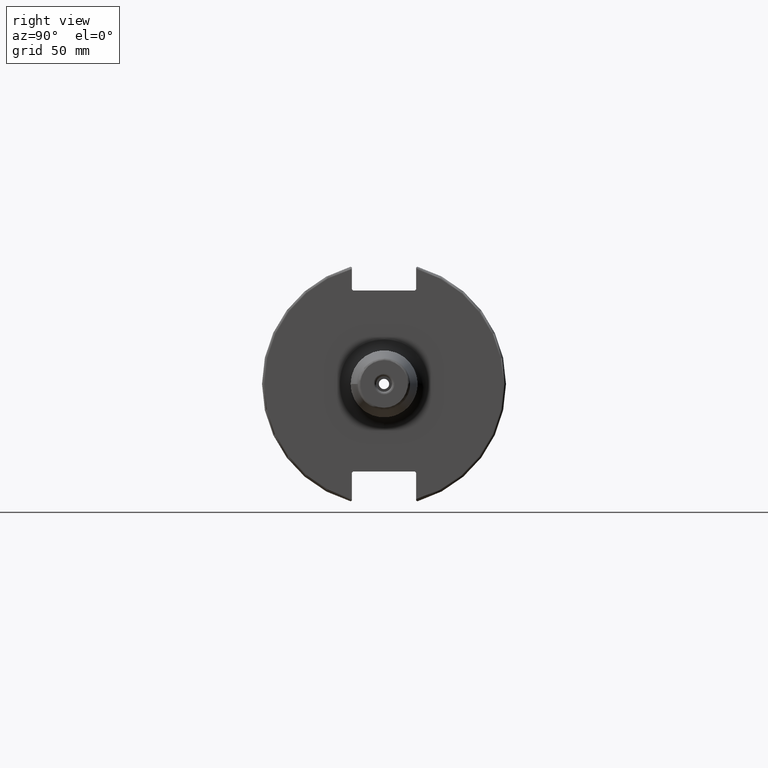
[diagram: clean part render]
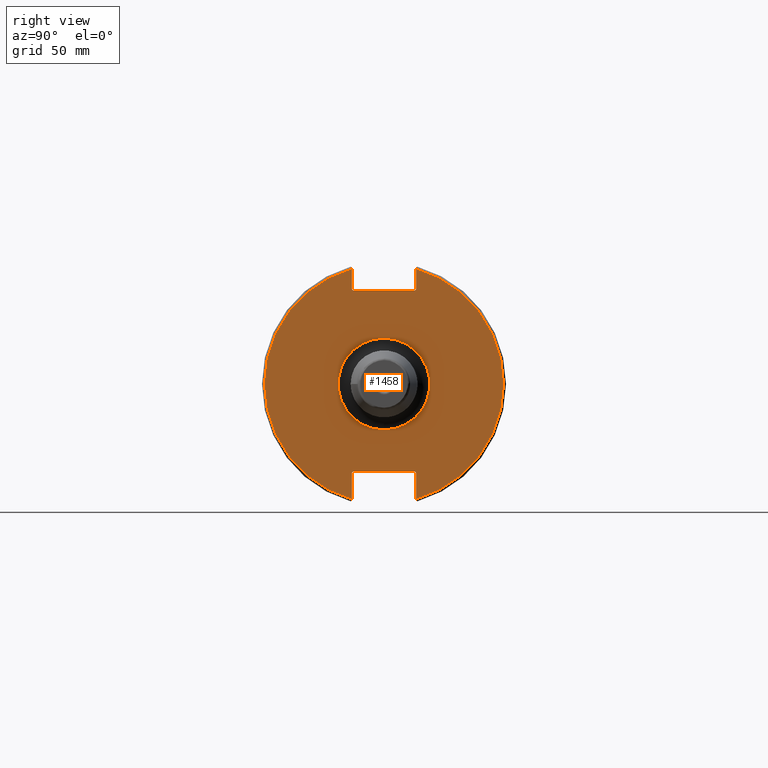
[diagram: same view with one face highlighted and labeled with its STEP entity id]
A machine part, right view. The second image highlights one B-rep face of the part: STEP entity #1458.
In plain terms, the highlighted planar face has unit normal (1, 0, 0).
Its self-contained STEP definition (entity closure, byte-faithful):
#87=LINE('',#2187,#179);
#88=LINE('',#2189,#180);
#89=LINE('',#2191,#181);
#90=LINE('',#2193,#182);
#91=LINE('',#2195,#183);
#92=LINE('',#2199,#184);
#93=LINE('',#2201,#185);
#94=LINE('',#2203,#186);
#95=LINE('',#2205,#187);
#96=LINE('',#2206,#188);
#179=VECTOR('',#1775,10.);
#180=VECTOR('',#1776,10.);
#181=VECTOR('',#1777,10.);
#182=VECTOR('',#1778,10.);
#183=VECTOR('',#1779,10.);
#184=VECTOR('',#1782,10.);
#185=VECTOR('',#1783,10.);
#186=VECTOR('',#1784,10.);
#187=VECTOR('',#1785,10.);
#188=VECTOR('',#1786,10.);
#296=FACE_BOUND('',#447,.T.);
#316=PLANE('',#1581);
#359=FACE_OUTER_BOUND('',#446,.T.);
#446=EDGE_LOOP('',(#1026,#1027,#1028,#1029,#1030,#1031,#1032,#1033,#1034,
#1035,#1036,#1037));
#447=EDGE_LOOP('',(#1038));
#556=CIRCLE('',#1578,18.5);
#558=CIRCLE('',#1582,48.2125);
#559=CIRCLE('',#1583,48.2125);
#630=VERTEX_POINT('',#2176);
#631=VERTEX_POINT('',#2183);
#632=VERTEX_POINT('',#2184);
#633=VERTEX_POINT('',#2186);
#634=VERTEX_POINT('',#2188);
#635=VERTEX_POINT('',#2190);
#636=VERTEX_POINT('',#2192);
#637=VERTEX_POINT('',#2194);
#638=VERTEX_POINT('',#2196);
#639=VERTEX_POINT('',#2198);
#640=VERTEX_POINT('',#2200);
#641=VERTEX_POINT('',#2202);
#642=VERTEX_POINT('',#2204);
#784=EDGE_CURVE('',#630,#630,#556,.T.);
#787=EDGE_CURVE('',#631,#632,#558,.T.);
#788=EDGE_CURVE('',#631,#633,#87,.T.);
#789=EDGE_CURVE('',#634,#633,#88,.T.);
#790=EDGE_CURVE('',#634,#635,#89,.T.);
#791=EDGE_CURVE('',#636,#635,#90,.T.);
#792=EDGE_CURVE('',#636,#637,#91,.T.);
#793=EDGE_CURVE('',#638,#637,#559,.T.);
#794=EDGE_CURVE('',#638,#639,#92,.T.);
#795=EDGE_CURVE('',#640,#639,#93,.T.);
#796=EDGE_CURVE('',#640,#641,#94,.T.);
#797=EDGE_CURVE('',#642,#641,#95,.T.);
#798=EDGE_CURVE('',#642,#632,#96,.T.);
#1026=ORIENTED_EDGE('',*,*,#787,.F.);
#1027=ORIENTED_EDGE('',*,*,#788,.T.);
#1028=ORIENTED_EDGE('',*,*,#789,.F.);
#1029=ORIENTED_EDGE('',*,*,#790,.T.);
#1030=ORIENTED_EDGE('',*,*,#791,.F.);
#1031=ORIENTED_EDGE('',*,*,#792,.T.);
#1032=ORIENTED_EDGE('',*,*,#793,.F.);
#1033=ORIENTED_EDGE('',*,*,#794,.T.);
#1034=ORIENTED_EDGE('',*,*,#795,.F.);
#1035=ORIENTED_EDGE('',*,*,#796,.T.);
#1036=ORIENTED_EDGE('',*,*,#797,.F.);
#1037=ORIENTED_EDGE('',*,*,#798,.T.);
#1038=ORIENTED_EDGE('',*,*,#784,.F.);
#1458=ADVANCED_FACE('',(#359,#296),#316,.T.);
#1578=AXIS2_PLACEMENT_3D('',#2178,#1764,#1765);
#1581=AXIS2_PLACEMENT_3D('',#2182,#1771,#1772);
#1582=AXIS2_PLACEMENT_3D('',#2185,#1773,#1774);
#1583=AXIS2_PLACEMENT_3D('',#2197,#1780,#1781);
#1764=DIRECTION('center_axis',(1.,0.,0.));
#1765=DIRECTION('ref_axis',(0.,-1.,-1.22464679914735E-16));
#1771=DIRECTION('center_axis',(1.,0.,0.));
#1772=DIRECTION('ref_axis',(0.,0.,-1.));
#1773=DIRECTION('center_axis',(-1.,0.,0.));
#1774=DIRECTION('ref_axis',(0.,1.,-6.12323399573677E-17));
#1775=DIRECTION('',(0.,0.,-1.));
#1776=DIRECTION('',(0.,0.707106781186549,0.707106781186546));
#1777=DIRECTION('',(0.,-1.,0.));
#1778=DIRECTION('',(0.,0.707106781186549,-0.707106781186546));
#1779=DIRECTION('',(0.,0.,1.));
#1780=DIRECTION('center_axis',(-1.,0.,0.));
#1781=DIRECTION('ref_axis',(0.,-1.,1.60812264967664E-16));
#1782=DIRECTION('',(0.,0.,1.));
#1783=DIRECTION('',(0.,-0.707106781186549,-0.707106781186546));
#1784=DIRECTION('',(0.,1.,0.));
#1785=DIRECTION('',(0.,-0.707106781186549,0.707106781186546));
#1786=DIRECTION('',(0.,0.,-1.));
#2176=CARTESIAN_POINT('',(19.05,-2.2655965784226E-15,-18.5));
#2178=CARTESIAN_POINT('Origin',(19.05,0.,0.));
#2182=CARTESIAN_POINT('Origin',(19.05,0.,0.));
#2183=CARTESIAN_POINT('',(19.05,12.95,46.4407434937254));
#2184=CARTESIAN_POINT('',(19.05,12.95,-46.4407434937254));
#2185=CARTESIAN_POINT('Origin',(19.05,0.,0.));
#2186=CARTESIAN_POINT('',(19.05,12.95,38.219));
#2187=CARTESIAN_POINT('',(19.05,12.95,18.8595));
#2188=CARTESIAN_POINT('',(19.05,12.45,37.719));
#2189=CARTESIAN_POINT('',(19.05,0.0327499999999836,25.30175));
#2190=CARTESIAN_POINT('',(19.05,-12.45,37.719));
#2191=CARTESIAN_POINT('',(19.05,0.,37.719));
#2192=CARTESIAN_POINT('',(19.05,-12.95,38.219));
#2193=CARTESIAN_POINT('',(19.05,-0.0327499999999817,25.30175));
#2194=CARTESIAN_POINT('',(19.05,-12.95,46.4407434937254));
#2195=CARTESIAN_POINT('',(19.05,-12.95,18.8595));
#2196=CARTESIAN_POINT('',(19.05,-12.95,-46.4407434937254));
#2197=CARTESIAN_POINT('Origin',(19.05,0.,0.));
#2198=CARTESIAN_POINT('',(19.05,-12.95,-35.806));
#2199=CARTESIAN_POINT('',(19.05,-12.95,-17.653));
#2200=CARTESIAN_POINT('',(19.05,-12.45,-35.306));
#2201=CARTESIAN_POINT('',(19.05,-0.635999999999989,-23.492));
#2202=CARTESIAN_POINT('',(19.05,12.45,-35.306));
#2203=CARTESIAN_POINT('',(19.05,-3.33066907387547E-15,-35.306));
#2204=CARTESIAN_POINT('',(19.05,12.95,-35.806));
#2205=CARTESIAN_POINT('',(19.05,0.635999999999982,-23.492));
#2206=CARTESIAN_POINT('',(19.05,12.95,-17.653));